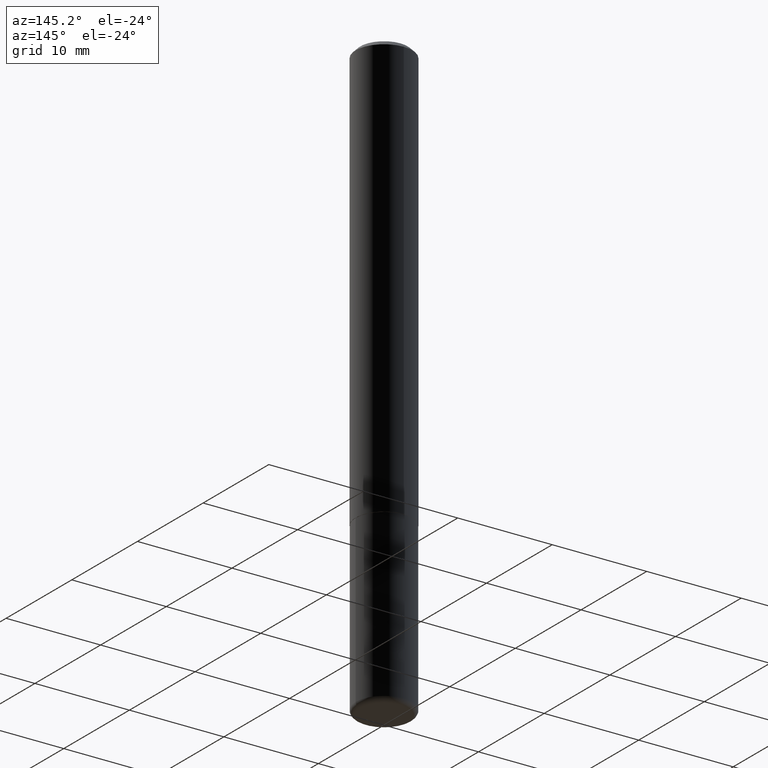
[diagram: clean part render]
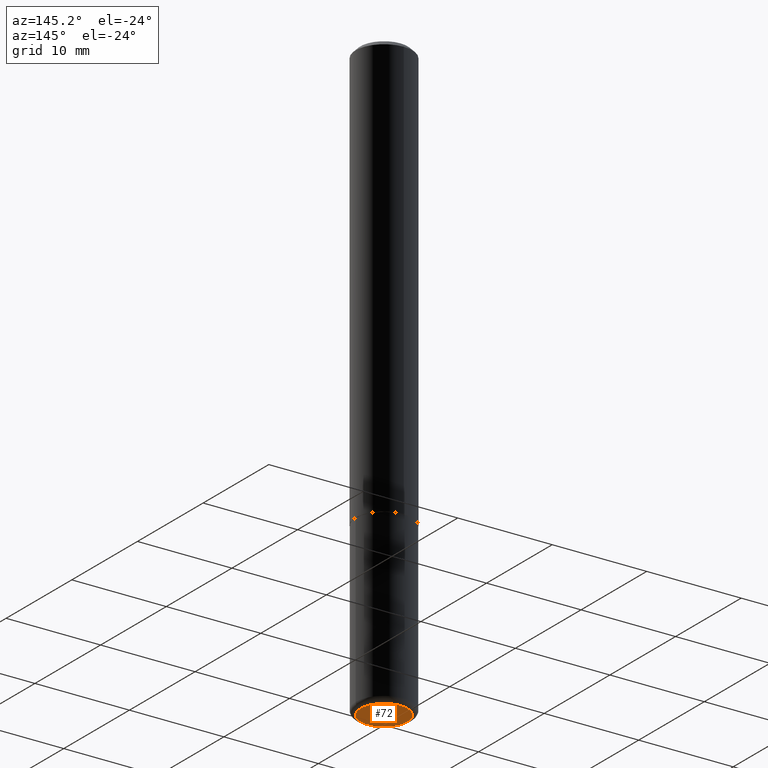
[diagram: same view with one face highlighted and labeled with its STEP entity id]
A machine part, auxiliary view. The second image highlights one B-rep face of the part: STEP entity #72.
In plain terms, the highlighted planar face has unit normal (0, -0, -1).
Its self-contained STEP definition (entity closure, byte-faithful):
#45 = EDGE_CURVE ( 'NONE', #83, #263, #351, .T. ) ;
#62 = DIRECTION ( 'NONE',  ( -2.445468806185136597E-29, 3.491481338843145583E-15, 1.000000000000000000 ) ) ;
#71 = FACE_OUTER_BOUND ( 'NONE', #186, .T. ) ;
#72 = ADVANCED_FACE ( 'NONE', ( #71 ), #249, .T. ) ;
#73 = AXIS2_PLACEMENT_3D ( 'NONE', #77, #151, #373 ) ;
#77 = CARTESIAN_POINT ( 'NONE',  ( 6.065496279980994755E-29, -8.659921164732655335E-15, -2.480300000000000171 ) ) ;
#83 = VERTEX_POINT ( 'NONE', #126 ) ;
#126 = CARTESIAN_POINT ( 'NONE',  ( 0.09840000000000000135, -9.347044692216982806E-15, -2.480300000000000171 ) ) ;
#151 = DIRECTION ( 'NONE',  ( -2.445468806185136597E-29, 3.491481338843145583E-15, 1.000000000000000000 ) ) ;
#165 = DIRECTION ( 'NONE',  ( 2.438088387897960049E-29, -3.491481338843145188E-15, -1.000000000000000000 ) ) ;
#186 = EDGE_LOOP ( 'NONE', ( #330, #411 ) ) ;
#198 = CARTESIAN_POINT ( 'NONE',  ( 6.065496279980994755E-29, -8.659921164732655335E-15, -2.480300000000000171 ) ) ;
#200 = EDGE_CURVE ( 'NONE', #263, #83, #394, .T. ) ;
#236 = DIRECTION ( 'NONE',  ( 1.000000000000000000, -6.982962677686261977E-15, 0.000000000000000000 ) ) ;
#249 = PLANE ( 'NONE',  #392 ) ;
#263 = VERTEX_POINT ( 'NONE', #340 ) ;
#273 = CARTESIAN_POINT ( 'NONE',  ( 6.065496279980994755E-29, -8.659921164732655335E-15, -2.480300000000000171 ) ) ;
#295 = DIRECTION ( 'NONE',  ( -1.000000000000000000, 6.982962677686265922E-15, -4.876176775795935793E-29 ) ) ;
#328 = AXIS2_PLACEMENT_3D ( 'NONE', #273, #62, #236 ) ;
#330 = ORIENTED_EDGE ( 'NONE', *, *, #45, .F. ) ;
#340 = CARTESIAN_POINT ( 'NONE',  ( -0.09840000000000000135, -7.856367562084741595E-15, -2.480300000000000171 ) ) ;
#351 = CIRCLE ( 'NONE', #328, 0.09840000000000000135 ) ;
#373 = DIRECTION ( 'NONE',  ( 1.000000000000000000, -6.982962677686261977E-15, 0.000000000000000000 ) ) ;
#392 = AXIS2_PLACEMENT_3D ( 'NONE', #198, #165, #295 ) ;
#394 = CIRCLE ( 'NONE', #73, 0.09840000000000000135 ) ;
#411 = ORIENTED_EDGE ( 'NONE', *, *, #200, .F. ) ;